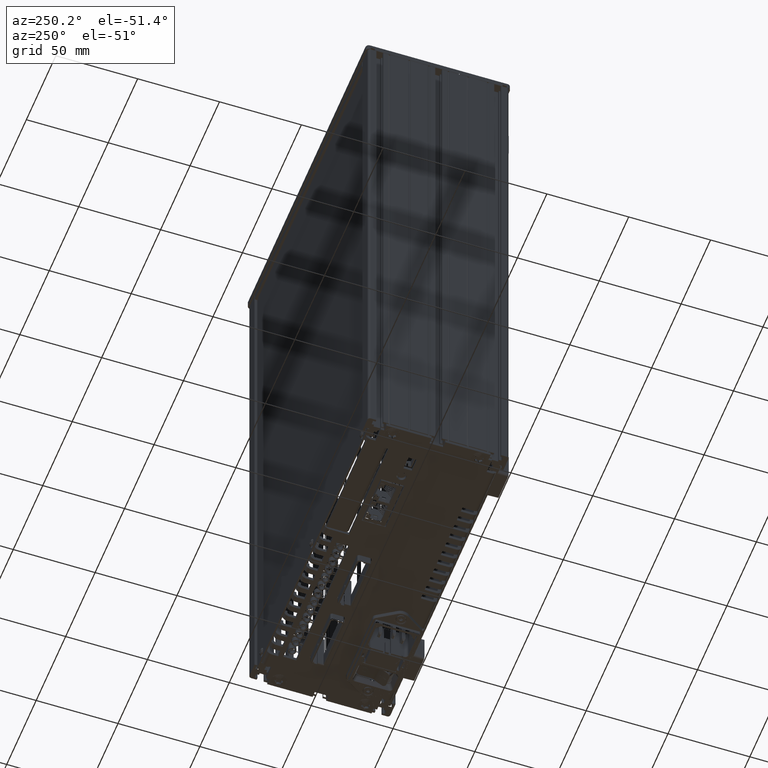
[diagram: clean part render]
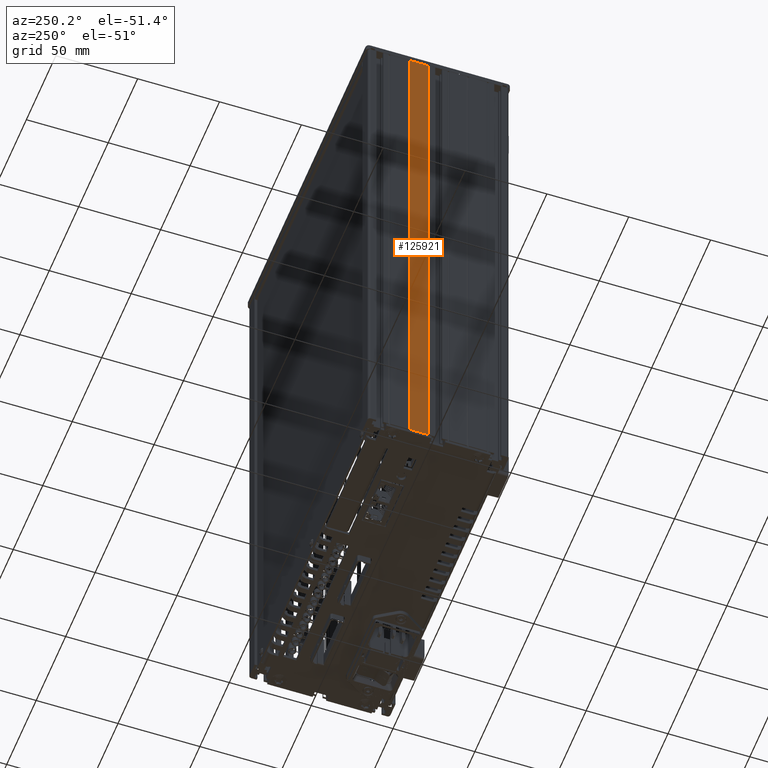
[diagram: same view with one face highlighted and labeled with its STEP entity id]
A machine part, auxiliary view. The second image highlights one B-rep face of the part: STEP entity #125921.
In plain terms, the highlighted planar face has unit normal (1, 0, 0).
Its self-contained STEP definition (entity closure, byte-faithful):
#2113 = CARTESIAN_POINT ( 'NONE',  ( 0.09999999999995949600, 2.469999999999999800, 2.775557561562891400E-014 ) ) ;
#3431 = DIRECTION ( 'NONE',  ( 0.0000000000000000000, 0.0000000000000000000, 1.000000000000000000 ) ) ;
#12470 = VECTOR ( 'NONE', #73241, 1000.000000000000000 ) ;
#13454 = PLANE ( 'NONE',  #61351 ) ;
#23611 = DIRECTION ( 'NONE',  ( 0.0000000000000000000, 0.0000000000000000000, -1.000000000000000000 ) ) ;
#23752 = LINE ( 'NONE', #43002, #93673 ) ;
#23800 = VECTOR ( 'NONE', #85134, 1000.000000000000000 ) ;
#24255 = FACE_OUTER_BOUND ( 'NONE', #83327, .T. ) ;
#34132 = EDGE_CURVE ( 'NONE', #117033, #121781, #73741, .T. ) ;
#38133 = CARTESIAN_POINT ( 'NONE',  ( 0.09999999999995949600, 50.51999999999998900, -339.9999999999999400 ) ) ;
#38456 = ORIENTED_EDGE ( 'NONE', *, *, #44970, .F. ) ;
#43002 = CARTESIAN_POINT ( 'NONE',  ( 0.09999999999991786300, 61.51999999999998200, -339.9999999999999400 ) ) ;
#44103 = CARTESIAN_POINT ( 'NONE',  ( 0.09999999999995949600, 2.469999999999999800, -339.9999999999999400 ) ) ;
#44593 = VERTEX_POINT ( 'NONE', #44605 ) ;
#44605 = CARTESIAN_POINT ( 'NONE',  ( 0.09999999999995949600, 50.51999999999998900, 2.775557561562891400E-014 ) ) ;
#44970 = EDGE_CURVE ( 'NONE', #121781, #118412, #23752, .T. ) ;
#49381 = EDGE_CURVE ( 'NONE', #44593, #118412, #80744, .T. ) ;
#57889 = VECTOR ( 'NONE', #83015, 1000.000000000000000 ) ;
#61351 = AXIS2_PLACEMENT_3D ( 'NONE', #44103, #84505, #23611 ) ;
#72071 = ORIENTED_EDGE ( 'NONE', *, *, #49381, .T. ) ;
#73241 = DIRECTION ( 'NONE',  ( 0.0000000000000000000, 1.000000000000000000, 0.0000000000000000000 ) ) ;
#73741 = LINE ( 'NONE', #102617, #57889 ) ;
#76221 = LINE ( 'NONE', #84274, #23800 ) ;
#80744 = LINE ( 'NONE', #2113, #12470 ) ;
#83015 = DIRECTION ( 'NONE',  ( 0.0000000000000000000, 1.000000000000000000, 0.0000000000000000000 ) ) ;
#83327 = EDGE_LOOP ( 'NONE', ( #113335, #97277, #72071, #38456 ) ) ;
#84274 = CARTESIAN_POINT ( 'NONE',  ( 0.09999999999995949600, 50.51999999999998900, -339.9999999999999400 ) ) ;
#84505 = DIRECTION ( 'NONE',  ( 1.000000000000000000, 0.0000000000000000000, 0.0000000000000000000 ) ) ;
#85134 = DIRECTION ( 'NONE',  ( 0.0000000000000000000, 0.0000000000000000000, 1.000000000000000000 ) ) ;
#93673 = VECTOR ( 'NONE', #3431, 1000.000000000000000 ) ;
#97277 = ORIENTED_EDGE ( 'NONE', *, *, #106250, .T. ) ;
#102617 = CARTESIAN_POINT ( 'NONE',  ( 0.09999999999995949600, 2.469999999999999800, -339.9999999999999400 ) ) ;
#106250 = EDGE_CURVE ( 'NONE', #117033, #44593, #76221, .T. ) ;
#113335 = ORIENTED_EDGE ( 'NONE', *, *, #34132, .F. ) ;
#117033 = VERTEX_POINT ( 'NONE', #38133 ) ;
#118412 = VERTEX_POINT ( 'NONE', #126314 ) ;
#120580 = CARTESIAN_POINT ( 'NONE',  ( 0.09999999999991786300, 61.51999999999998200, -339.9999999999999400 ) ) ;
#121781 = VERTEX_POINT ( 'NONE', #120580 ) ;
#125921 = ADVANCED_FACE ( 'NONE', ( #24255 ), #13454, .F. ) ;
#126314 = CARTESIAN_POINT ( 'NONE',  ( 0.09999999999995949600, 61.51999999999998200, 2.775557561562891400E-014 ) ) ;